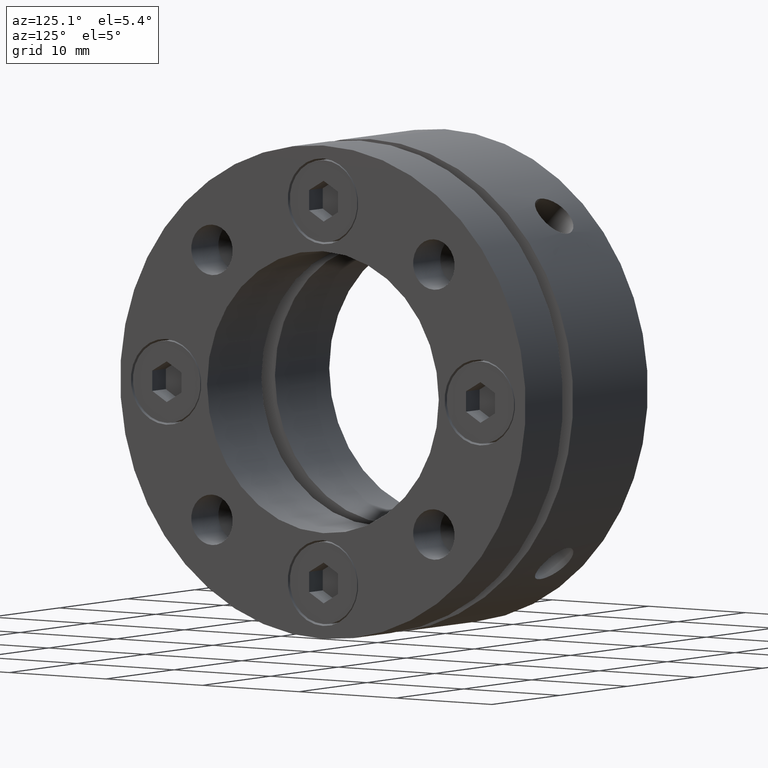
[diagram: clean part render]
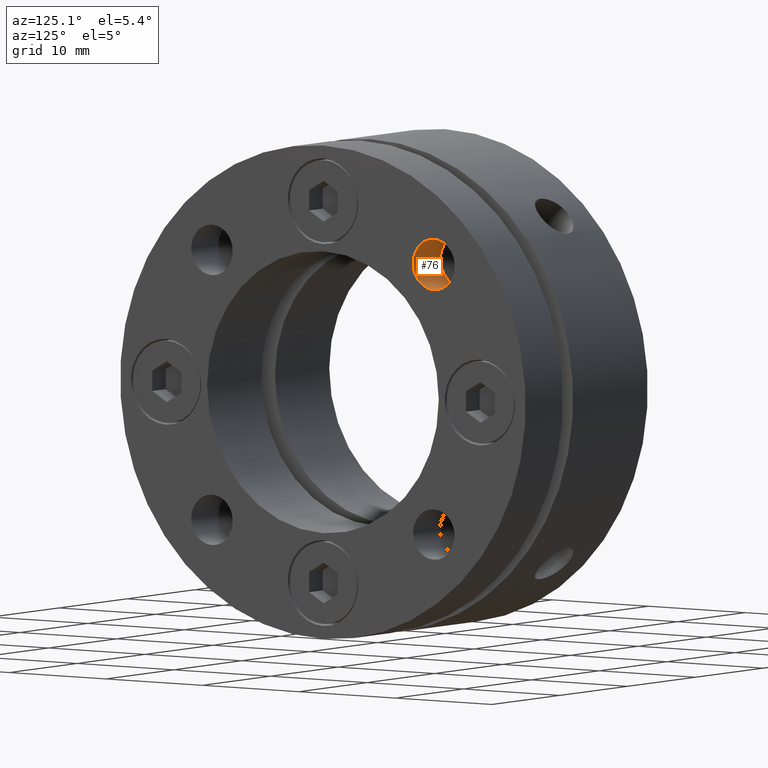
[diagram: same view with one face highlighted and labeled with its STEP entity id]
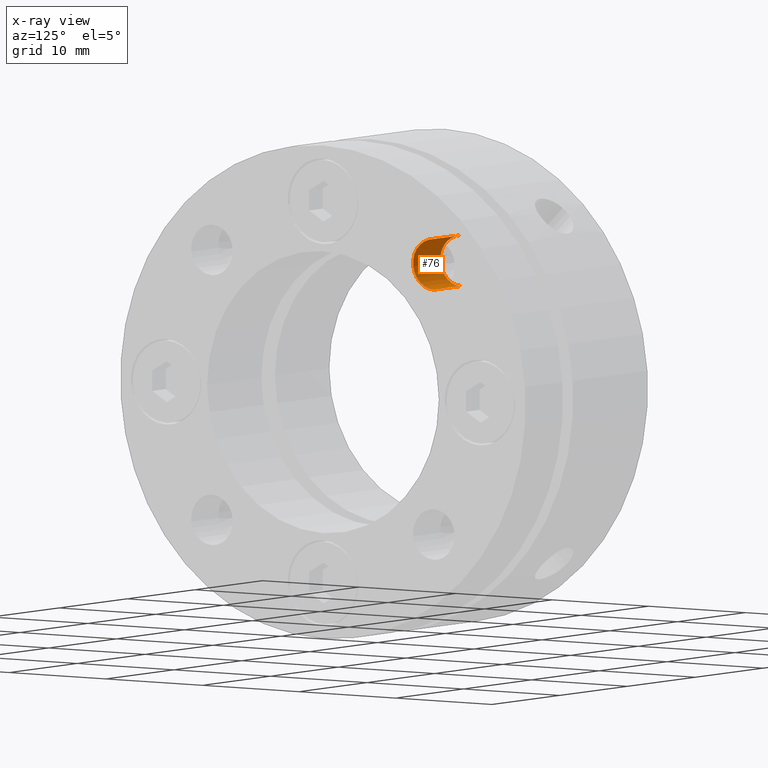
[diagram: x-ray of the same camera — body ghosted, the highlighted face saturated]
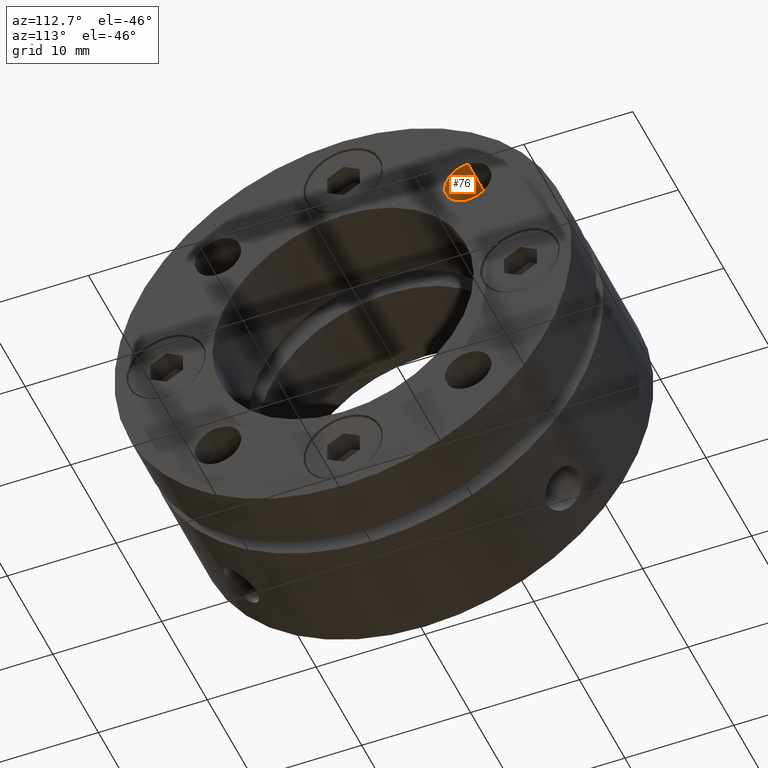
[diagram: same view with one face highlighted and labeled with its STEP entity id]
A machine part, auxiliary view. The second image highlights one B-rep face of the part: STEP entity #76.
The next image is the same camera in x-ray: the body ghosted, the highlighted face saturated — about 0% of this face is hidden behind the body in this view.
A second angle (auxiliary view) of the same face is appended — the face is thin or edge-on in the first view.
In plain terms, the highlighted cylindrical surface (edge-blend (fillet) strip) has radius 2.15 mm, axis along (1, 0, 0).
Its self-contained STEP definition (entity closure, byte-faithful):
#76 = ADVANCED_FACE ( 'NONE', ( #2579 ), #2583, .F. ) ;
#101 = ORIENTED_EDGE ( 'NONE', *, *, #1165, .F. ) ;
#759 = ORIENTED_EDGE ( 'NONE', *, *, #1153, .F. ) ;
#761 = ORIENTED_EDGE ( 'NONE', *, *, #1151, .F. ) ;
#762 = ORIENTED_EDGE ( 'NONE', *, *, #1152, .T. ) ;
#859 = AXIS2_PLACEMENT_3D ( 'NONE', #1675, #1677, #1679 ) ;
#936 = AXIS2_PLACEMENT_3D ( 'NONE', #2912, #2910, #2909 ) ;
#937 = AXIS2_PLACEMENT_3D ( 'NONE', #2900, #2898, #2897 ) ;
#1151 = EDGE_CURVE ( 'NONE', #1751, #1752, #2791, .T. ) ;
#1152 = EDGE_CURVE ( 'NONE', #1851, #1752, #2787, .T. ) ;
#1153 = EDGE_CURVE ( 'NONE', #1851, #1786, #2793, .T. ) ;
#1165 = EDGE_CURVE ( 'NONE', #1786, #1751, #2810, .T. ) ;
#1675 = CARTESIAN_POINT ( 'NONE',  ( 15.99999999999999300, 11.49048519428139900, 11.49048519428139400 ) ) ;
#1677 = DIRECTION ( 'NONE',  ( 1.000000000000000000, 0.0000000000000000000, 0.0000000000000000000 ) ) ;
#1679 = DIRECTION ( 'NONE',  ( 0.0000000000000000000, 0.0000000000000000000, -1.000000000000000000 ) ) ;
#1751 = VERTEX_POINT ( 'NONE', #3506 ) ;
#1752 = VERTEX_POINT ( 'NONE', #3504 ) ;
#1786 = VERTEX_POINT ( 'NONE', #3480 ) ;
#1851 = VERTEX_POINT ( 'NONE', #3444 ) ;
#2189 = EDGE_LOOP ( 'NONE', ( #759, #762, #761, #101 ) ) ;
#2579 = FACE_OUTER_BOUND ( 'NONE', #2189, .T. ) ;
#2583 = CYLINDRICAL_SURFACE ( 'NONE', #859, 2.149999999999999000 ) ;
#2787 = LINE ( 'NONE', #2914, #2795 ) ;
#2791 = CIRCLE ( 'NONE', #936, 2.149999999999999000 ) ;
#2793 = CIRCLE ( 'NONE', #937, 2.149999999999999000 ) ;
#2795 = VECTOR ( 'NONE', #2924, 1000.000000000000000 ) ;
#2810 = LINE ( 'NONE', #2929, #2814 ) ;
#2814 = VECTOR ( 'NONE', #2894, 1000.000000000000000 ) ;
#2894 = DIRECTION ( 'NONE',  ( 1.000000000000000000, 0.0000000000000000000, 0.0000000000000000000 ) ) ;
#2897 = DIRECTION ( 'NONE',  ( 0.0000000000000000000, 0.0000000000000000000, -1.000000000000000000 ) ) ;
#2898 = DIRECTION ( 'NONE',  ( 1.000000000000000000, 0.0000000000000000000, 0.0000000000000000000 ) ) ;
#2900 = CARTESIAN_POINT ( 'NONE',  ( 13.99999999999999500, 11.49048519428139900, 11.49048519428139400 ) ) ;
#2909 = DIRECTION ( 'NONE',  ( 0.0000000000000000000, 0.0000000000000000000, -1.000000000000000000 ) ) ;
#2910 = DIRECTION ( 'NONE',  ( -1.000000000000000000, -0.0000000000000000000, -0.0000000000000000000 ) ) ;
#2912 = CARTESIAN_POINT ( 'NONE',  ( 17.99999999999999300, 11.49048519428139900, 11.49048519428139400 ) ) ;
#2914 = CARTESIAN_POINT ( 'NONE',  ( 15.99999999999999300, 11.49048519428139900, 13.64048519428139400 ) ) ;
#2924 = DIRECTION ( 'NONE',  ( 1.000000000000000000, 0.0000000000000000000, 0.0000000000000000000 ) ) ;
#2929 = CARTESIAN_POINT ( 'NONE',  ( 15.99999999999999300, 11.49048519428139900, 9.340485194281395600 ) ) ;
#3444 = CARTESIAN_POINT ( 'NONE',  ( 13.99999999999999500, 11.49048519428139900, 13.64048519151498900 ) ) ;
#3480 = CARTESIAN_POINT ( 'NONE',  ( 13.99999999999999500, 11.49048519428139900, 9.340485197047801300 ) ) ;
#3504 = CARTESIAN_POINT ( 'NONE',  ( 17.99999999999999300, 11.49048519428139900, 13.64048519428139400 ) ) ;
#3506 = CARTESIAN_POINT ( 'NONE',  ( 17.99999999999999300, 11.49048519428139900, 9.340485194281395600 ) ) ;